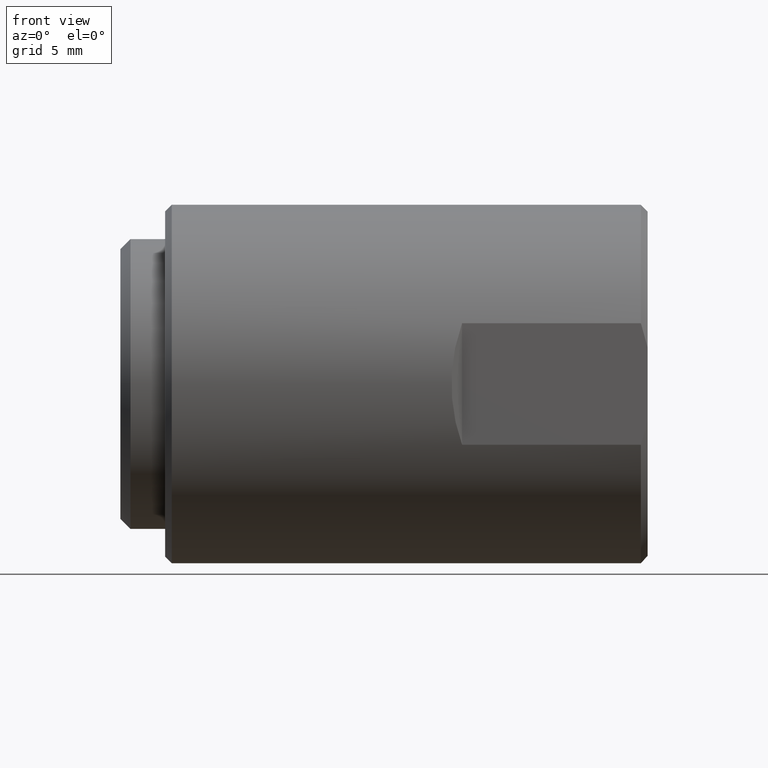
[diagram: clean part render]
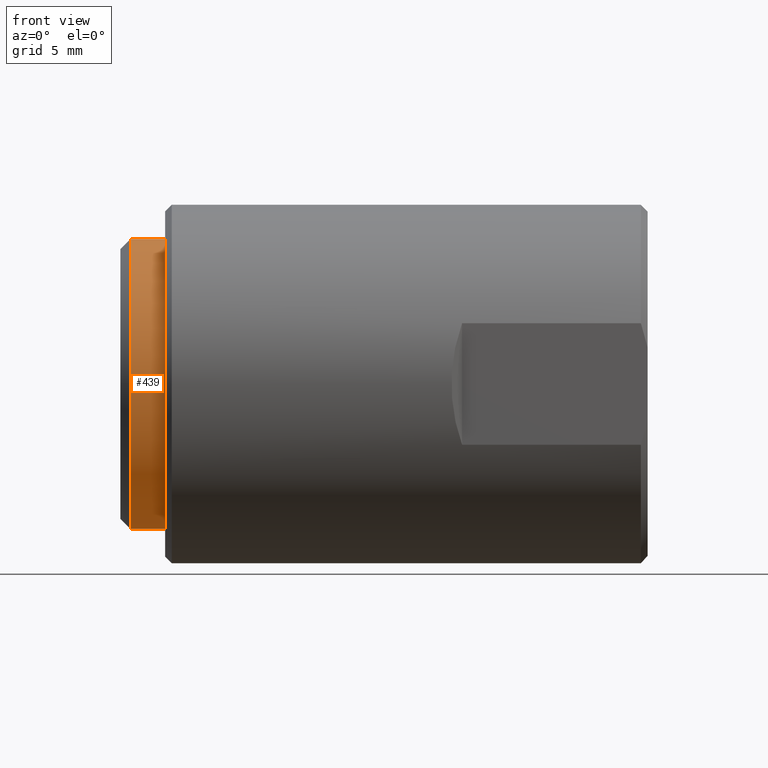
[diagram: same view with one face highlighted and labeled with its STEP entity id]
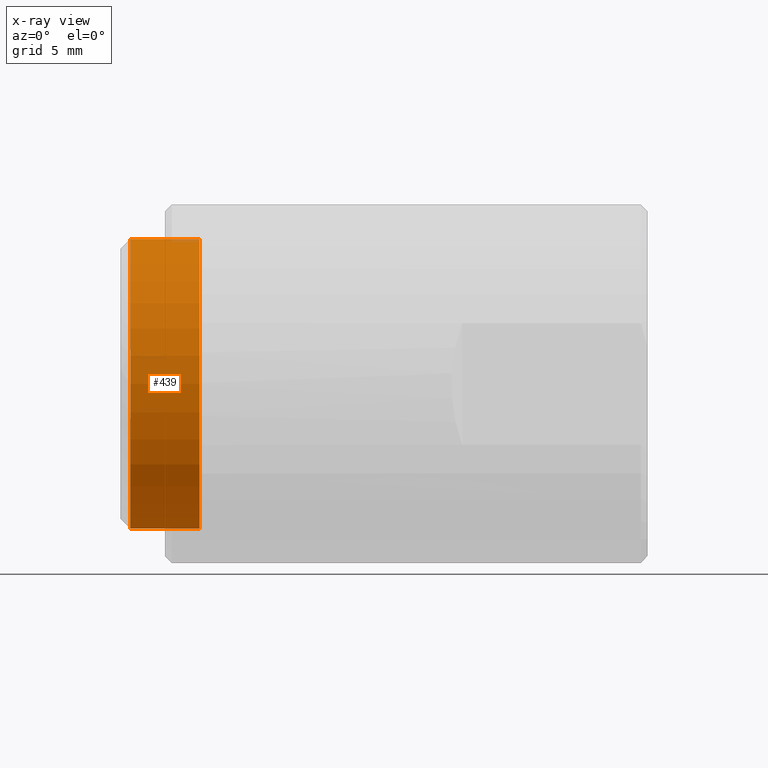
[diagram: x-ray of the same camera — body ghosted, the highlighted face saturated]
A machine part, front view. The second image highlights one B-rep face of the part: STEP entity #439.
The next image is the same camera in x-ray: the body ghosted, the highlighted face saturated — about 1% of this face is hidden behind the body in this view.
In plain terms, the highlighted cylindrical surface (partial cylindrical patch) has radius 10.9093 mm, axis along (-1, -0, -0).
Its self-contained STEP definition (entity closure, byte-faithful):
#25 = CARTESIAN_POINT ( 'NONE',  ( -0.1089999999999999997, 5.259858002337882088E-17, -0.4295000000000000484 ) ) ;
#29 = CYLINDRICAL_SURFACE ( 'NONE', #3058, 0.4295000000000000484 ) ;
#439 = ADVANCED_FACE ( 'NONE', ( #6229 ), #29, .T. ) ;
#557 = CIRCLE ( 'NONE', #3341, 0.4295000000000000484 ) ;
#1315 = VERTEX_POINT ( 'NONE', #11133 ) ;
#1404 = EDGE_CURVE ( 'NONE', #2256, #11244, #2458, .T. ) ;
#1654 = CARTESIAN_POINT ( 'NONE',  ( 0.0000000000000000000, 0.0000000000000000000, 0.4295000000000000484 ) ) ;
#1730 = CARTESIAN_POINT ( 'NONE',  ( -0.1089999999999999997, 0.0000000000000000000, 0.0000000000000000000 ) ) ;
#2256 = VERTEX_POINT ( 'NONE', #25 ) ;
#2372 = DIRECTION ( 'NONE',  ( -1.000000000000000000, -0.0000000000000000000, -0.0000000000000000000 ) ) ;
#2458 = LINE ( 'NONE', #10384, #7332 ) ;
#3058 = AXIS2_PLACEMENT_3D ( 'NONE', #7806, #10454, #6927 ) ;
#3266 = CIRCLE ( 'NONE', #6422, 0.4294999999999999374 ) ;
#3341 = AXIS2_PLACEMENT_3D ( 'NONE', #1730, #11461, #8808 ) ;
#3673 = EDGE_LOOP ( 'NONE', ( #5642, #11347, #7289, #4405 ) ) ;
#4152 = DIRECTION ( 'NONE',  ( -1.000000000000000000, -0.0000000000000000000, -0.0000000000000000000 ) ) ;
#4405 = ORIENTED_EDGE ( 'NONE', *, *, #5086, .F. ) ;
#5086 = EDGE_CURVE ( 'NONE', #11244, #1315, #3266, .T. ) ;
#5093 = DIRECTION ( 'NONE',  ( 0.0000000000000000000, 0.0000000000000000000, 1.000000000000000000 ) ) ;
#5642 = ORIENTED_EDGE ( 'NONE', *, *, #1404, .F. ) ;
#6229 = FACE_OUTER_BOUND ( 'NONE', #3673, .T. ) ;
#6422 = AXIS2_PLACEMENT_3D ( 'NONE', #10299, #2372, #5093 ) ;
#6817 = LINE ( 'NONE', #1654, #10355 ) ;
#6927 = DIRECTION ( 'NONE',  ( 0.0000000000000000000, 0.0000000000000000000, 1.000000000000000000 ) ) ;
#7289 = ORIENTED_EDGE ( 'NONE', *, *, #7772, .T. ) ;
#7332 = VECTOR ( 'NONE', #7948, 39.37007874015748143 ) ;
#7772 = EDGE_CURVE ( 'NONE', #9315, #1315, #6817, .T. ) ;
#7806 = CARTESIAN_POINT ( 'NONE',  ( 0.0000000000000000000, 0.0000000000000000000, 0.0000000000000000000 ) ) ;
#7948 = DIRECTION ( 'NONE',  ( -1.000000000000000000, -0.0000000000000000000, -0.0000000000000000000 ) ) ;
#8808 = DIRECTION ( 'NONE',  ( 0.0000000000000000000, 0.0000000000000000000, 1.000000000000000000 ) ) ;
#9105 = EDGE_CURVE ( 'NONE', #2256, #9315, #557, .T. ) ;
#9315 = VERTEX_POINT ( 'NONE', #10293 ) ;
#10293 = CARTESIAN_POINT ( 'NONE',  ( -0.1089999999999999997, 0.0000000000000000000, 0.4295000000000000484 ) ) ;
#10299 = CARTESIAN_POINT ( 'NONE',  ( -0.3140000000000000013, 0.0000000000000000000, 0.0000000000000000000 ) ) ;
#10355 = VECTOR ( 'NONE', #4152, 39.37007874015748143 ) ;
#10384 = CARTESIAN_POINT ( 'NONE',  ( 0.0000000000000000000, 5.259858002337882088E-17, -0.4295000000000000484 ) ) ;
#10454 = DIRECTION ( 'NONE',  ( -1.000000000000000000, -0.0000000000000000000, -0.0000000000000000000 ) ) ;
#10561 = CARTESIAN_POINT ( 'NONE',  ( -0.3140000000000000013, 5.259858002337881471E-17, -0.4294999999999999374 ) ) ;
#11133 = CARTESIAN_POINT ( 'NONE',  ( -0.3140000000000000013, 0.0000000000000000000, 0.4294999999999999374 ) ) ;
#11244 = VERTEX_POINT ( 'NONE', #10561 ) ;
#11347 = ORIENTED_EDGE ( 'NONE', *, *, #9105, .T. ) ;
#11461 = DIRECTION ( 'NONE',  ( -1.000000000000000000, -0.0000000000000000000, -0.0000000000000000000 ) ) ;